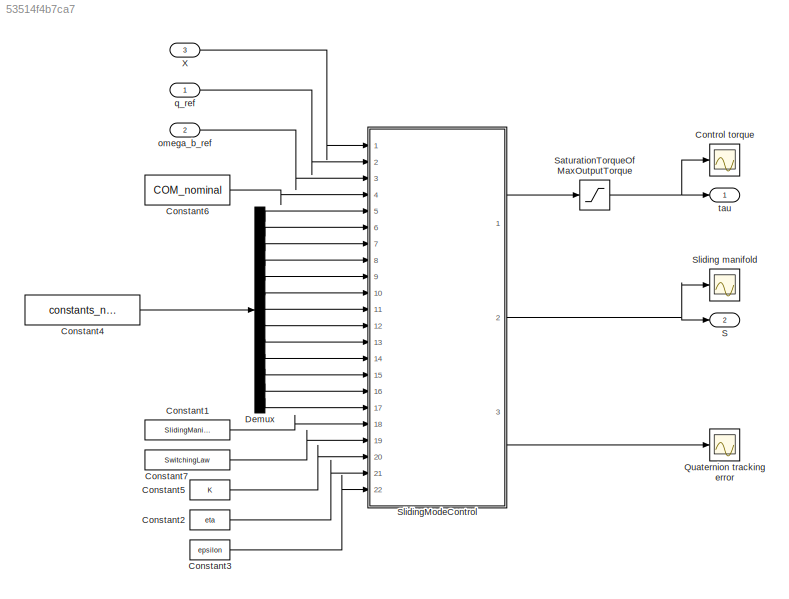
MODEL slx_53514f4b7ca7
KIND model
CONFIG AbsTol = auto
CONFIG EnableMultiTasking = off
CONFIG FixedStep = auto
CONFIG InitFcn = Constants_Kugle\nConstants_nominal\n\nParameters_Controllers
CONFIG MaxStep = 1e-2
CONFIG MinStep = auto
CONFIG PreLoadFcn = modelDir = fileparts(get_param(bdroot, 'FileName'));\naddpath(fullfile(modelDir,'../../Parameters'));\naddpath(fullfile(modelDir,'../../Controllers/SlidingMode'));\n\nConstants_Kugle\nConstants_nominal\n\nParameters_Controllers
CONFIG RelTol = 1e-5
CONFIG SampleTimeConstraint = Unconstrained
CONFIG Solver = FixedStepAuto
CONFIG SolverName = FixedStepAuto
CONFIG StartTime = 0.0
CONFIG StopTime = 10.0
BLOCK [Constant] Constant1
  Value = SlidingManifold
BLOCK [Constant] Constant2
  Value = eta
BLOCK [Constant] Constant3
  Value = epsilon
BLOCK [Constant] Constant4
  Value = constants_nominal
BLOCK [Constant] Constant5
  Value = K
BLOCK [Constant] Constant6
  Value = COM_nominal
BLOCK [Constant] Constant7
  Value = SwitchingLaw
BLOCK [Scope] Control torque
  Floating = off
  NumInputPorts = 1
  Ports = [1]
  ScopeSpecificationString = Simulink.scopes.TimeScopeBlockCfg('CurrentConfiguration', extmgr.ConfigurationSet(extmgr.Configuration('Core','General UI',true),extmgr.Configuration('Core','Source UI',true),extmgr.Configuration('Sources','WiredSimulink',true,'DataLoggingVariableName','ScopeData1'),extmgr.Configuration('Visuals','Time Domain',true,'SerializedDisplays',{struct('MinYLimReal','-1.88497','MaxYLimReal','1.10471','YLab...<+1517ch>
BLOCK [Demux] Demux
  DisplayOption = bar
  Outputs = 13
  Ports = [1, 13]
BLOCK [Scope] Quaternion tracking error
  Floating = off
  NumInputPorts = 1
  Ports = [1]
  ScopeSpecificationString = Simulink.scopes.TimeScopeBlockCfg('CurrentConfiguration', extmgr.ConfigurationSet(extmgr.Configuration('Core','General UI',true),extmgr.Configuration('Core','Source UI',true),extmgr.Configuration('Sources','WiredSimulink',true),extmgr.Configuration('Visuals','Time Domain',true,'SerializedDisplays',{struct('MinYLimReal','-0.44421','MaxYLimReal','1.16047','YLabelReal','','MinYLimMag','0.00000','MaxY...<+1445ch>
BLOCK [Outport] S
  IconDisplay = Port number
  Port = 2
BLOCK [Saturate] SaturationTorqueOfMaxOutputTorque
  InputPortMap = u0
  LowerLimit = -SaturationTorqueOfMaxOutputTorque*max_output_torque
  Ports = [1, 1]
  UpperLimit = SaturationTorqueOfMaxOutputTorque*max_output_torque
BLOCK [Scope] Sliding manifold
  Floating = off
  NumInputPorts = 1
  Ports = [1]
  ScopeSpecificationString = Simulink.scopes.TimeScopeBlockCfg('CurrentConfiguration', extmgr.ConfigurationSet(extmgr.Configuration('Core','General UI',true),extmgr.Configuration('Core','Source UI',true),extmgr.Configuration('Sources','WiredSimulink',true,'DataLoggingVariableName','ScopeData1'),extmgr.Configuration('Visuals','Time Domain',true,'SerializedDisplays',{struct('MinYLimReal','-3.00785','MaxYLimReal','1.78731','YLab...<+1550ch>
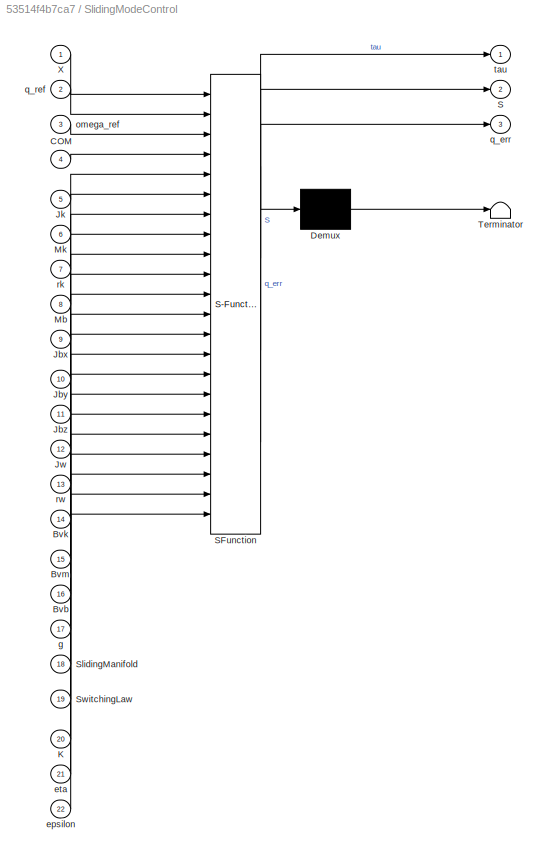
BLOCK [SubSystem] SlidingModeControl
  ErrorFcn = Stateflow.Translate.translate
  PermitHierarchicalResolution = ExplicitOnly
  Ports = [22, 3]
  RequestExecContextInheritance = off
  SFBlockType = MATLAB Function
  TreatAsAtomicUnit = on
BLOCK [Demux] SlidingModeControl/ Demux 
  Outputs = 1
  Ports = [1, 1]
BLOCK [S-Function] SlidingModeControl/ SFunction 
  EnableBusSupport = on
  FunctionName = sf_sfun
  PortCounts = [22 4]
  Ports = [22, 4]
  SFcnIsStateOwnerBlock = off
  SFunctionDeploymentMode = off
  Tag = Stateflow S-Function SlidingMode 2
BLOCK [Terminator] SlidingModeControl/ Terminator 
BLOCK [Inport] SlidingModeControl/Bvb
  IconDisplay = Port number
  Port = 16
BLOCK [Inport] SlidingModeControl/Bvk
  IconDisplay = Port number
  Port = 14
BLOCK [Inport] SlidingModeControl/Bvm
  IconDisplay = Port number
  Port = 15
BLOCK [Inport] SlidingModeControl/COM
  IconDisplay = Port number
  Port = 4
BLOCK [Inport] SlidingModeControl/Jbx
  IconDisplay = Port number
  Port = 9
BLOCK [Inport] SlidingModeControl/Jby
  IconDisplay = Port number
  Port = 10
BLOCK [Inport] SlidingModeControl/Jbz
  IconDisplay = Port number
  Port = 11
BLOCK [Inport] SlidingModeControl/Jk
  IconDisplay = Port number
  Port = 5
BLOCK [Inport] SlidingModeControl/Jw
  IconDisplay = Port number
  Port = 12
BLOCK [Inport] SlidingModeControl/K
  IconDisplay = Port number
  Port = 20
BLOCK [Inport] SlidingModeControl/Mb
  IconDisplay = Port number
  Port = 8
BLOCK [Inport] SlidingModeControl/Mk
  IconDisplay = Port number
  Port = 6
BLOCK [Outport] SlidingModeControl/S
  IconDisplay = Port number
  Port = 2
BLOCK [Inport] SlidingModeControl/SlidingManifold
  IconDisplay = Port number
  Port = 18
BLOCK [Inport] SlidingModeControl/SwitchingLaw
  IconDisplay = Port number
  Port = 19
BLOCK [Inport] SlidingModeControl/X
  IconDisplay = Port number
BLOCK [Inport] SlidingModeControl/epsilon
  IconDisplay = Port number
  Port = 22
BLOCK [Inport] SlidingModeControl/eta
  IconDisplay = Port number
  Port = 21
BLOCK [Inport] SlidingModeControl/g
  IconDisplay = Port number
  Port = 17
BLOCK [Inport] SlidingModeControl/omega_ref
  IconDisplay = Port number
  Port = 3
BLOCK [Outport] SlidingModeControl/q_err
  IconDisplay = Port number
  Port = 3
BLOCK [Inport] SlidingModeControl/q_ref
  IconDisplay = Port number
  Port = 2
BLOCK [Inport] SlidingModeControl/rk
  IconDisplay = Port number
  Port = 7
BLOCK [Inport] SlidingModeControl/rw
  IconDisplay = Port number
  Port = 13
BLOCK [Outport] SlidingModeControl/tau
  IconDisplay = Port number
BLOCK [Inport] X
  IconDisplay = Port number
  Port = 3
  PortDimensions = 12
BLOCK [Inport] omega_b_ref
  IconDisplay = Port number
  Port = 2
  PortDimensions = 3
BLOCK [Inport] q_ref
  IconDisplay = Port number
  PortDimensions = 4
BLOCK [Outport] tau
  IconDisplay = Port number
LINE Constant1:1 -> SlidingModeControl:18
LINE Constant2:1 -> SlidingModeControl:21
LINE Constant3:1 -> SlidingModeControl:22
LINE Constant4:1 -> Demux:1
LINE Constant5:1 -> SlidingModeControl:20
LINE Constant6:1 -> SlidingModeControl:4
LINE Constant7:1 -> SlidingModeControl:19
LINE Demux:1 -> SlidingModeControl:5
LINE Demux:10 -> SlidingModeControl:14
LINE Demux:11 -> SlidingModeControl:15
LINE Demux:12 -> SlidingModeControl:16
LINE Demux:13 -> SlidingModeControl:17
LINE Demux:2 -> SlidingModeControl:6
LINE Demux:3 -> SlidingModeControl:7
LINE Demux:4 -> SlidingModeControl:8
LINE Demux:5 -> SlidingModeControl:9
LINE Demux:6 -> SlidingModeControl:10
LINE Demux:7 -> SlidingModeControl:11
LINE Demux:8 -> SlidingModeControl:12
LINE Demux:9 -> SlidingModeControl:13
NET SaturationTorqueOfMaxOutputTorque:1 -> Control torque:1, tau:1
LINE SlidingModeControl:1 -> SaturationTorqueOfMaxOutputTorque:1
NET SlidingModeControl:2 -> S:1, Sliding manifold:1
LINE SlidingModeControl:3 -> Quaternion tracking error:1
LINE X:1 -> SlidingModeControl:1
LINE omega_b_ref:1 -> SlidingModeControl:3
LINE q_ref:1 -> SlidingModeControl:2
note: NET lines group one-source signal fan-out (src -> all destinations, sorted); 1:1 wires keep LINE
CHART SlidingModeControl states=1 transitions=1
  STATE_LABEL 'eML_blk_kernel()'
  STATE_LABEL 'SCRIPT:\nfunction [tau, S, q_err] = SlidingModeControl_(X,q_ref,omega_ref,  COM,Jk,Mk,rk,Mb,Jbx,Jby,Jbz,Jw,rw,Bvk,Bvm,Bvb,g,  SlidingManifold,SwitchingLaw,K,eta,epsilon)\n    COM_X = COM(1);\n    COM_Y = COM(2);\n    COM_Z = COM(3);\n    \n    [tau, S, q_err] = SlidingModeControl(X,q_ref,omega_ref,  COM_X,COM_Y,COM_Z,Jbx,Jby,Jbz,Jk,Jw,Mb,Mk,Bvb,Bvk,Bvm,rk,rw,g,  SlidingManifold,SwitchingLaw,K,eta,epsilo...<+7ch>'
